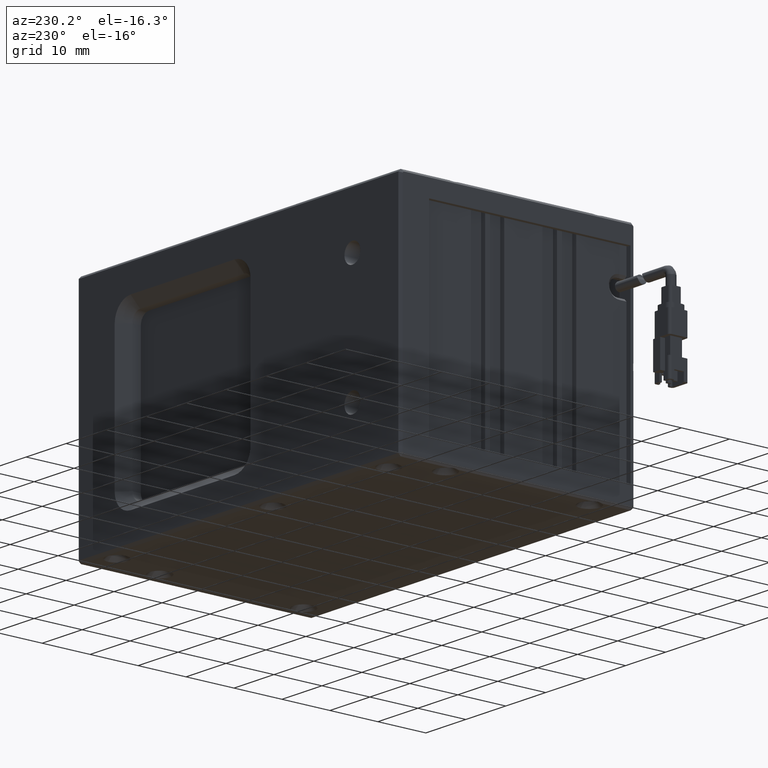
[diagram: clean part render]
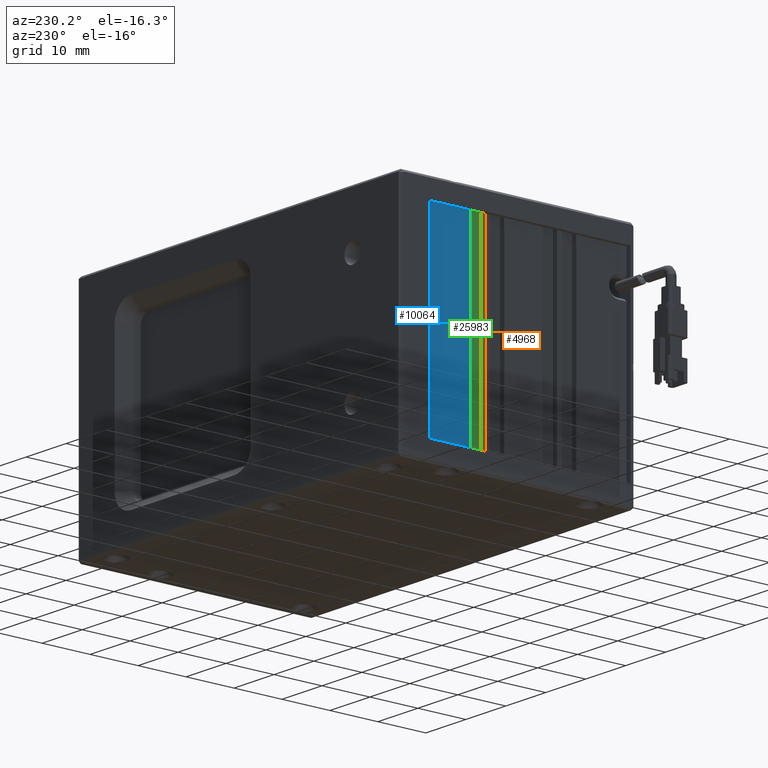
[diagram: same view with three faces highlighted in distinct colors, each labeled with its STEP entity id]
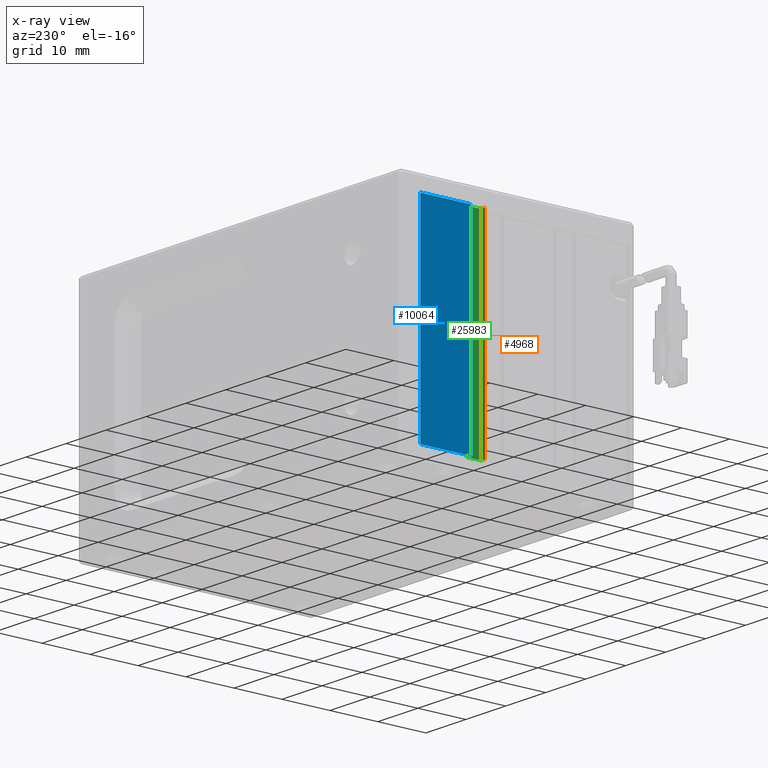
[diagram: x-ray of the same camera — body ghosted, the three highlighted faces saturated]
A machine part, auxiliary view with three faces highlighted in distinct colors.
The next image is the same camera in x-ray (body ghosted, the three faces saturated) — at least one of them is partly hidden behind the body in this view.
Their STEP definitions:

[orange] entity #4968 — the highlighted planar face has unit normal (0, -1, 0).
#979 = EDGE_LOOP ( 'NONE', ( #27512, #28225, #6322, #20905 ) ) ;
#1105 = LINE ( 'NONE', #21185, #24348 ) ;
#1192 = LINE ( 'NONE', #11607, #7159 ) ;
#3308 = EDGE_CURVE ( 'NONE', #14693, #28964, #1192, .T. ) ;
#3804 = CARTESIAN_POINT ( 'NONE',  ( -43.04090188148500600, 22.24734783202000800, 4.999999999995094600 ) ) ;
#4146 = DIRECTION ( 'NONE',  ( 0.0000000000000000000, -1.000000000000000000, 0.0000000000000000000 ) ) ;
#4968 = ADVANCED_FACE ( 'NONE', ( #18165 ), #22055, .F. ) ;
#5176 = VERTEX_POINT ( 'NONE', #22927 ) ;
#6005 = EDGE_CURVE ( 'NONE', #5176, #14693, #1105, .T. ) ;
#6322 = ORIENTED_EDGE ( 'NONE', *, *, #6005, .F. ) ;
#6989 = DIRECTION ( 'NONE',  ( 1.000000000000000000, -0.0000000000000000000, -0.0000000000000000000 ) ) ;
#7159 = VECTOR ( 'NONE', #6989, 1000.000000000000000 ) ;
#8634 = DIRECTION ( 'NONE',  ( 0.0000000000000000000, 0.0000000000000000000, 1.000000000000000000 ) ) ;
#9120 = VERTEX_POINT ( 'NONE', #23548 ) ;
#11607 = CARTESIAN_POINT ( 'NONE',  ( -43.04090188148500600, 22.24734783202000800, -37.00000000000009900 ) ) ;
#12220 = DIRECTION ( 'NONE',  ( -0.0000000000000000000, -0.0000000000000000000, -1.000000000000000000 ) ) ;
#14009 = VECTOR ( 'NONE', #19527, 1000.000000000000000 ) ;
#14693 = VERTEX_POINT ( 'NONE', #24429 ) ;
#16883 = EDGE_CURVE ( 'NONE', #28964, #9120, #17918, .T. ) ;
#17643 = CARTESIAN_POINT ( 'NONE',  ( -42.46868221657000200, 22.24734783202000800, -37.84000000000000300 ) ) ;
#17694 = CARTESIAN_POINT ( 'NONE',  ( -42.54090188148268200, 22.24734783202033500, -37.00000000000007100 ) ) ;
#17918 = LINE ( 'NONE', #26774, #23875 ) ;
#18165 = FACE_OUTER_BOUND ( 'NONE', #979, .T. ) ;
#19527 = DIRECTION ( 'NONE',  ( -1.000000000000000000, 0.0000000000000000000, 0.0000000000000000000 ) ) ;
#19885 = DIRECTION ( 'NONE',  ( 0.0000000000000000000, 0.0000000000000000000, 1.000000000000000000 ) ) ;
#20010 = LINE ( 'NONE', #3804, #14009 ) ;
#20905 = ORIENTED_EDGE ( 'NONE', *, *, #25010, .F. ) ;
#21185 = CARTESIAN_POINT ( 'NONE',  ( -43.54090188148762800, 22.24734783202000800, -16.00000000000249800 ) ) ;
#22055 = PLANE ( 'NONE',  #25274 ) ;
#22927 = CARTESIAN_POINT ( 'NONE',  ( -43.54090188148387600, 22.24734783201896700, 4.999999999995068800 ) ) ;
#23548 = CARTESIAN_POINT ( 'NONE',  ( -42.54090188148268200, 22.24734783202033500, 4.999999999995069700 ) ) ;
#23875 = VECTOR ( 'NONE', #8634, 1000.000000000000000 ) ;
#24348 = VECTOR ( 'NONE', #12220, 1000.000000000000000 ) ;
#24429 = CARTESIAN_POINT ( 'NONE',  ( -43.54090188148387600, 22.24734783201896700, -37.00000000000007100 ) ) ;
#25010 = EDGE_CURVE ( 'NONE', #9120, #5176, #20010, .T. ) ;
#25274 = AXIS2_PLACEMENT_3D ( 'NONE', #17643, #4146, #19885 ) ;
#26774 = CARTESIAN_POINT ( 'NONE',  ( -42.54090188147999600, 22.24734783202196200, -16.00000000000250100 ) ) ;
#27512 = ORIENTED_EDGE ( 'NONE', *, *, #16883, .F. ) ;
#28225 = ORIENTED_EDGE ( 'NONE', *, *, #3308, .F. ) ;
#28964 = VERTEX_POINT ( 'NONE', #17694 ) ;

[blue] entity #10064 — the highlighted planar face has unit normal (-1, 0, 0).
#202 = LINE ( 'NONE', #10754, #12130 ) ;
#204 = CARTESIAN_POINT ( 'NONE',  ( -43.54090188148788300, 14.24734783201900600, 4.999999999995000400 ) ) ;
#963 = FACE_OUTER_BOUND ( 'NONE', #19462, .T. ) ;
#1359 = EDGE_CURVE ( 'NONE', #24796, #8892, #202, .T. ) ;
#3992 = ORIENTED_EDGE ( 'NONE', *, *, #1359, .F. ) ;
#4018 = AXIS2_PLACEMENT_3D ( 'NONE', #11501, #27288, #13775 ) ;
#4943 = DIRECTION ( 'NONE',  ( -0.0000000000000000000, -0.0000000000000000000, -1.000000000000000000 ) ) ;
#5789 = LINE ( 'NONE', #18350, #11788 ) ;
#5853 = EDGE_CURVE ( 'NONE', #11185, #8892, #26835, .T. ) ;
#6952 = CARTESIAN_POINT ( 'NONE',  ( -43.54090188148394000, 35.74734783201999700, -37.00000000000007100 ) ) ;
#8832 = VECTOR ( 'NONE', #4943, 1000.000000000000000 ) ;
#8892 = VERTEX_POINT ( 'NONE', #6952 ) ;
#9501 = EDGE_CURVE ( 'NONE', #24796, #17706, #5789, .T. ) ;
#10064 = ADVANCED_FACE ( 'NONE', ( #963 ), #24915, .T. ) ;
#10539 = VECTOR ( 'NONE', #15941, 1000.000000000000000 ) ;
#10754 = CARTESIAN_POINT ( 'NONE',  ( -43.54090188148788300, 14.24734783201900600, -37.00000000000000000 ) ) ;
#11185 = VERTEX_POINT ( 'NONE', #27342 ) ;
#11501 = CARTESIAN_POINT ( 'NONE',  ( -43.54090188148000400, 25.03734783202000700, -37.84000000000000300 ) ) ;
#11788 = VECTOR ( 'NONE', #20690, 1000.000000000000000 ) ;
#12130 = VECTOR ( 'NONE', #26524, 1000.000000000000000 ) ;
#13775 = DIRECTION ( 'NONE',  ( 0.0000000000000000000, 0.0000000000000000000, 1.000000000000000000 ) ) ;
#15257 = ORIENTED_EDGE ( 'NONE', *, *, #5853, .T. ) ;
#15941 = DIRECTION ( 'NONE',  ( 0.0000000000000000000, 1.000000000000000000, 0.0000000000000000000 ) ) ;
#17706 = VERTEX_POINT ( 'NONE', #25718 ) ;
#18350 = CARTESIAN_POINT ( 'NONE',  ( -43.54090188148000400, 25.24734783202000800, -16.00000000000250100 ) ) ;
#19462 = EDGE_LOOP ( 'NONE', ( #15257, #3992, #26552, #21849 ) ) ;
#20690 = DIRECTION ( 'NONE',  ( 0.0000000000000000000, 0.0000000000000000000, 1.000000000000000000 ) ) ;
#21849 = ORIENTED_EDGE ( 'NONE', *, *, #24566, .T. ) ;
#24566 = EDGE_CURVE ( 'NONE', #17706, #11185, #27805, .T. ) ;
#24796 = VERTEX_POINT ( 'NONE', #27721 ) ;
#24915 = PLANE ( 'NONE',  #4018 ) ;
#25160 = CARTESIAN_POINT ( 'NONE',  ( -43.54090188148787600, 35.74734783202000400, -16.00000000000249800 ) ) ;
#25718 = CARTESIAN_POINT ( 'NONE',  ( -43.54090188148578700, 25.24734783201988000, 4.999999999995069700 ) ) ;
#26524 = DIRECTION ( 'NONE',  ( 0.0000000000000000000, 1.000000000000000000, 0.0000000000000000000 ) ) ;
#26552 = ORIENTED_EDGE ( 'NONE', *, *, #9501, .T. ) ;
#26835 = LINE ( 'NONE', #25160, #8832 ) ;
#27288 = DIRECTION ( 'NONE',  ( -1.000000000000000000, 0.0000000000000000000, 0.0000000000000000000 ) ) ;
#27342 = CARTESIAN_POINT ( 'NONE',  ( -43.54090188148591500, 35.74734783201999000, 4.999999999995046600 ) ) ;
#27721 = CARTESIAN_POINT ( 'NONE',  ( -43.54090188148578700, 25.24734783201988000, -37.00000000000007100 ) ) ;
#27805 = LINE ( 'NONE', #204, #10539 ) ;

[green] entity #25983 — the highlighted planar face has unit normal (-1, 0, 0).
#386 = CARTESIAN_POINT ( 'NONE',  ( -42.54090188148596500, 14.24734783201900600, -37.00000000000000000 ) ) ;
#497 = AXIS2_PLACEMENT_3D ( 'NONE', #16714, #3228, #18984 ) ;
#559 = ORIENTED_EDGE ( 'NONE', *, *, #16883, .T. ) ;
#1634 = CARTESIAN_POINT ( 'NONE',  ( -42.54090188147998900, 25.24734783202004400, -16.00000000000250100 ) ) ;
#2038 = LINE ( 'NONE', #386, #19259 ) ;
#3228 = DIRECTION ( 'NONE',  ( -1.000000000000000000, 0.0000000000000000000, 0.0000000000000000000 ) ) ;
#4726 = CARTESIAN_POINT ( 'NONE',  ( -42.54090188148596500, 14.24734783201900600, 4.999999999995000400 ) ) ;
#5772 = ORIENTED_EDGE ( 'NONE', *, *, #8880, .F. ) ;
#6201 = VECTOR ( 'NONE', #21889, 1000.000000000000000 ) ;
#6447 = CARTESIAN_POINT ( 'NONE',  ( -42.54090188148268200, 25.24734783201988700, 4.999999999995068800 ) ) ;
#7354 = LINE ( 'NONE', #4726, #18650 ) ;
#8634 = DIRECTION ( 'NONE',  ( 0.0000000000000000000, 0.0000000000000000000, 1.000000000000000000 ) ) ;
#8880 = EDGE_CURVE ( 'NONE', #28964, #13783, #2038, .T. ) ;
#9120 = VERTEX_POINT ( 'NONE', #23548 ) ;
#9299 = FACE_OUTER_BOUND ( 'NONE', #14162, .T. ) ;
#10001 = ORIENTED_EDGE ( 'NONE', *, *, #20073, .T. ) ;
#12904 = LINE ( 'NONE', #1634, #6201 ) ;
#13783 = VERTEX_POINT ( 'NONE', #27241 ) ;
#14162 = EDGE_LOOP ( 'NONE', ( #24966, #10001, #5772, #559 ) ) ;
#16125 = DIRECTION ( 'NONE',  ( 0.0000000000000000000, 1.000000000000000000, 0.0000000000000000000 ) ) ;
#16452 = EDGE_CURVE ( 'NONE', #9120, #28996, #7354, .T. ) ;
#16625 = PLANE ( 'NONE',  #497 ) ;
#16714 = CARTESIAN_POINT ( 'NONE',  ( -42.54090188147999600, 22.17512816711000700, -37.84000000000000300 ) ) ;
#16883 = EDGE_CURVE ( 'NONE', #28964, #9120, #17918, .T. ) ;
#17694 = CARTESIAN_POINT ( 'NONE',  ( -42.54090188148268200, 22.24734783202033500, -37.00000000000007100 ) ) ;
#17918 = LINE ( 'NONE', #26774, #23875 ) ;
#18650 = VECTOR ( 'NONE', #20486, 1000.000000000000000 ) ;
#18984 = DIRECTION ( 'NONE',  ( 0.0000000000000000000, 0.0000000000000000000, 1.000000000000000000 ) ) ;
#19259 = VECTOR ( 'NONE', #16125, 1000.000000000000000 ) ;
#20073 = EDGE_CURVE ( 'NONE', #28996, #13783, #12904, .T. ) ;
#20486 = DIRECTION ( 'NONE',  ( 0.0000000000000000000, 1.000000000000000000, 0.0000000000000000000 ) ) ;
#21889 = DIRECTION ( 'NONE',  ( -0.0000000000000000000, -0.0000000000000000000, -1.000000000000000000 ) ) ;
#23548 = CARTESIAN_POINT ( 'NONE',  ( -42.54090188148268200, 22.24734783202033500, 4.999999999995069700 ) ) ;
#23875 = VECTOR ( 'NONE', #8634, 1000.000000000000000 ) ;
#24966 = ORIENTED_EDGE ( 'NONE', *, *, #16452, .T. ) ;
#25983 = ADVANCED_FACE ( 'NONE', ( #9299 ), #16625, .T. ) ;
#26774 = CARTESIAN_POINT ( 'NONE',  ( -42.54090188147999600, 22.24734783202196200, -16.00000000000250100 ) ) ;
#27241 = CARTESIAN_POINT ( 'NONE',  ( -42.54090188148268200, 25.24734783201988700, -37.00000000000007100 ) ) ;
#28964 = VERTEX_POINT ( 'NONE', #17694 ) ;
#28996 = VERTEX_POINT ( 'NONE', #6447 ) ;